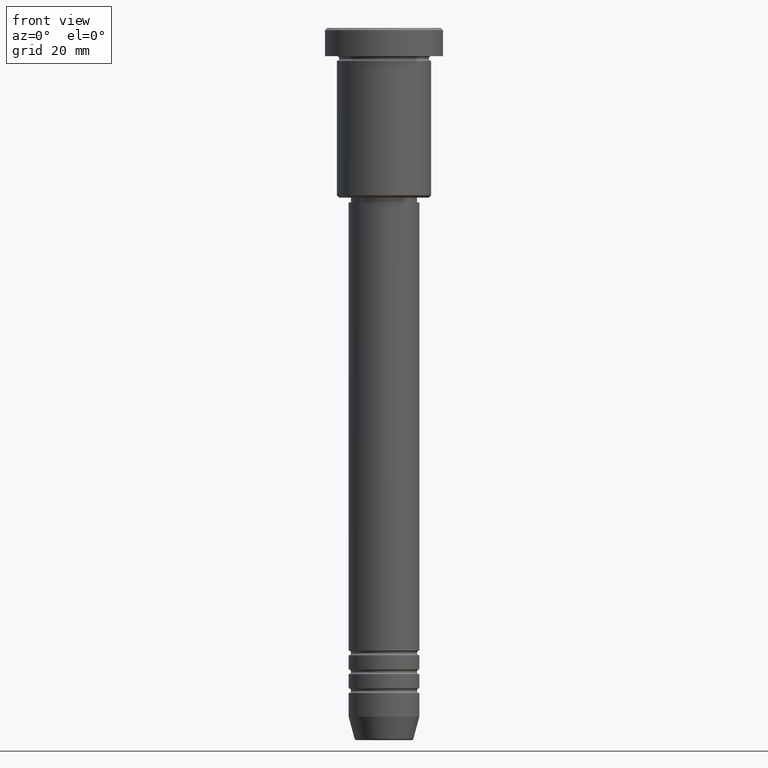
[diagram: clean part render]
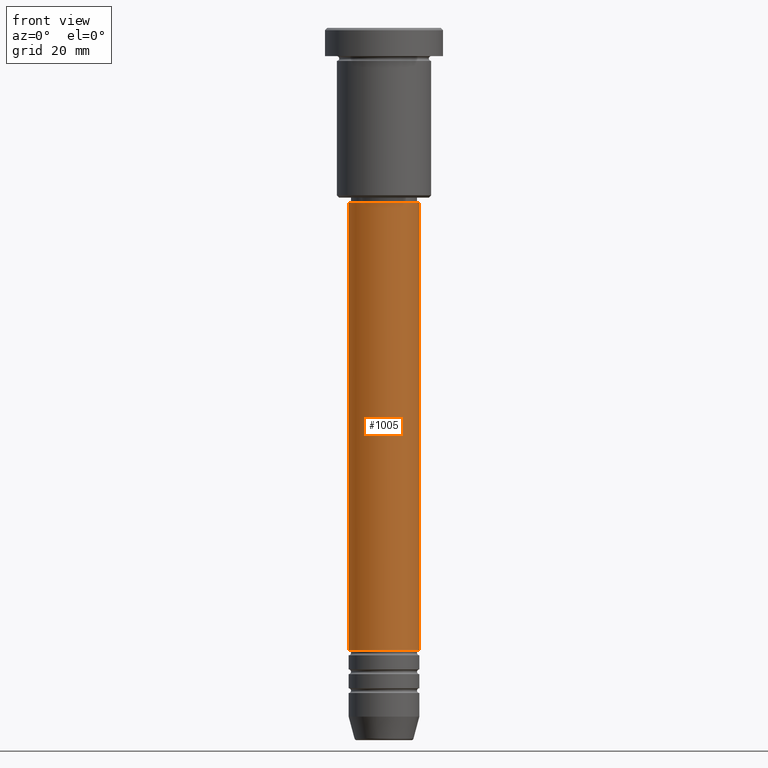
[diagram: same view with one face highlighted and labeled with its STEP entity id]
A machine part, front view. The second image highlights one B-rep face of the part: STEP entity #1005.
In plain terms, the highlighted cylindrical surface (edge-blend (fillet) strip) has radius 7.5 mm, axis along (-0, -0, 1).
Its self-contained STEP definition (entity closure, byte-faithful):
#25 = DIRECTION ( 'NONE',  ( -0.000000000000000000, -0.000000000000000000, 1.000000000000000000 ) ) ;
#82 = CARTESIAN_POINT ( 'NONE',  ( -7.500000000000000000, 9.184850993605147944E-16, -37.00000000000000000 ) ) ;
#113 = CARTESIAN_POINT ( 'NONE',  ( 7.500000000000000888, 0.000000000000000000, -131.9999999999998863 ) ) ;
#124 = AXIS2_PLACEMENT_3D ( 'NONE', #352, #25, #1097 ) ;
#128 = DIRECTION ( 'NONE',  ( -0.000000000000000000, -0.000000000000000000, 1.000000000000000000 ) ) ;
#145 = AXIS2_PLACEMENT_3D ( 'NONE', #598, #516, #881 ) ;
#208 = CARTESIAN_POINT ( 'NONE',  ( 0.000000000000000000, 0.000000000000000000, 0.000000000000000000 ) ) ;
#236 = CIRCLE ( 'NONE', #124, 7.500000000000000000 ) ;
#259 = EDGE_LOOP ( 'NONE', ( #1134, #477, #942, #688 ) ) ;
#310 = LINE ( 'NONE', #681, #849 ) ;
#352 = CARTESIAN_POINT ( 'NONE',  ( 0.000000000000000000, 0.000000000000000000, -37.00000000000000000 ) ) ;
#354 = EDGE_CURVE ( 'NONE', #984, #399, #806, .T. ) ;
#399 = VERTEX_POINT ( 'NONE', #82 ) ;
#403 = DIRECTION ( 'NONE',  ( -0.000000000000000000, -0.000000000000000000, 1.000000000000000000 ) ) ;
#477 = ORIENTED_EDGE ( 'NONE', *, *, #804, .T. ) ;
#479 = DIRECTION ( 'NONE',  ( 1.000000000000000000, 0.000000000000000000, 0.000000000000000000 ) ) ;
#516 = DIRECTION ( 'NONE',  ( -0.000000000000000000, -0.000000000000000000, 1.000000000000000000 ) ) ;
#527 = DIRECTION ( 'NONE',  ( -0.000000000000000000, -0.000000000000000000, 1.000000000000000000 ) ) ;
#561 = EDGE_CURVE ( 'NONE', #654, #1137, #310, .T. ) ;
#598 = CARTESIAN_POINT ( 'NONE',  ( 0.000000000000000000, 0.000000000000000000, -131.9999999999998863 ) ) ;
#654 = VERTEX_POINT ( 'NONE', #113 ) ;
#669 = FACE_OUTER_BOUND ( 'NONE', #259, .T. ) ;
#681 = CARTESIAN_POINT ( 'NONE',  ( 7.500000000000000000, 0.000000000000000000, 0.000000000000000000 ) ) ;
#688 = ORIENTED_EDGE ( 'NONE', *, *, #961, .F. ) ;
#730 = CARTESIAN_POINT ( 'NONE',  ( -7.500000000000001776, 9.184850993605149917E-16, -131.9999999999998863 ) ) ;
#792 = AXIS2_PLACEMENT_3D ( 'NONE', #208, #403, #479 ) ;
#804 = EDGE_CURVE ( 'NONE', #984, #654, #1102, .T. ) ;
#806 = LINE ( 'NONE', #1168, #1099 ) ;
#848 = CYLINDRICAL_SURFACE ( 'NONE', #792, 7.500000000000000000 ) ;
#849 = VECTOR ( 'NONE', #128, 1000.000000000000000 ) ;
#881 = DIRECTION ( 'NONE',  ( 1.000000000000000000, 0.000000000000000000, 0.000000000000000000 ) ) ;
#942 = ORIENTED_EDGE ( 'NONE', *, *, #561, .T. ) ;
#961 = EDGE_CURVE ( 'NONE', #399, #1137, #236, .T. ) ;
#984 = VERTEX_POINT ( 'NONE', #730 ) ;
#1005 = ADVANCED_FACE ( 'NONE', ( #669 ), #848, .T. ) ;
#1029 = CARTESIAN_POINT ( 'NONE',  ( 7.500000000000000000, 0.000000000000000000, -37.00000000000000000 ) ) ;
#1097 = DIRECTION ( 'NONE',  ( 1.000000000000000000, 0.000000000000000000, 0.000000000000000000 ) ) ;
#1099 = VECTOR ( 'NONE', #527, 1000.000000000000000 ) ;
#1102 = CIRCLE ( 'NONE', #145, 7.500000000000000888 ) ;
#1134 = ORIENTED_EDGE ( 'NONE', *, *, #354, .F. ) ;
#1137 = VERTEX_POINT ( 'NONE', #1029 ) ;
#1168 = CARTESIAN_POINT ( 'NONE',  ( -7.500000000000000000, 9.184850993605147944E-16, 0.000000000000000000 ) ) ;